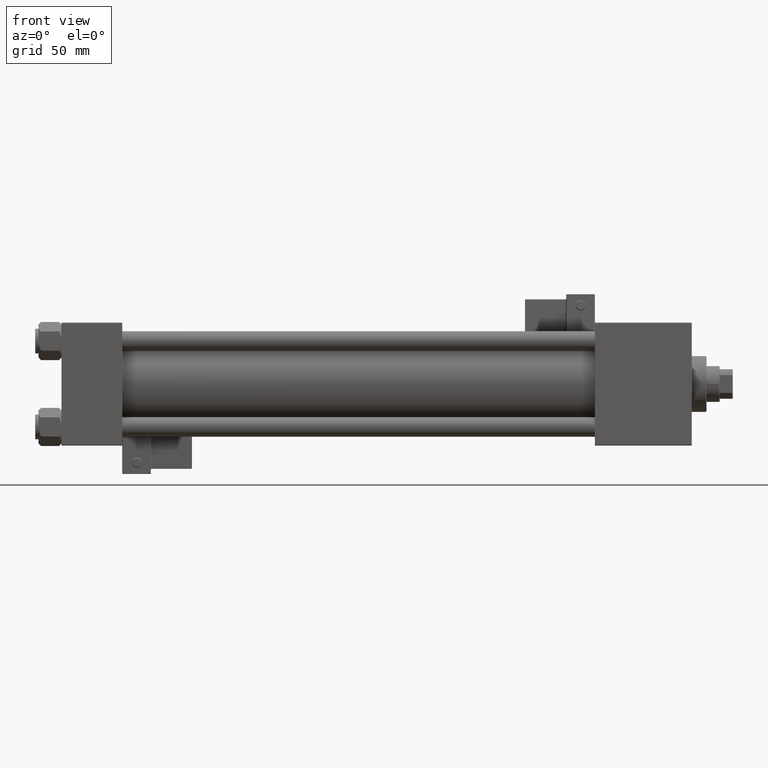
[diagram: clean part render]
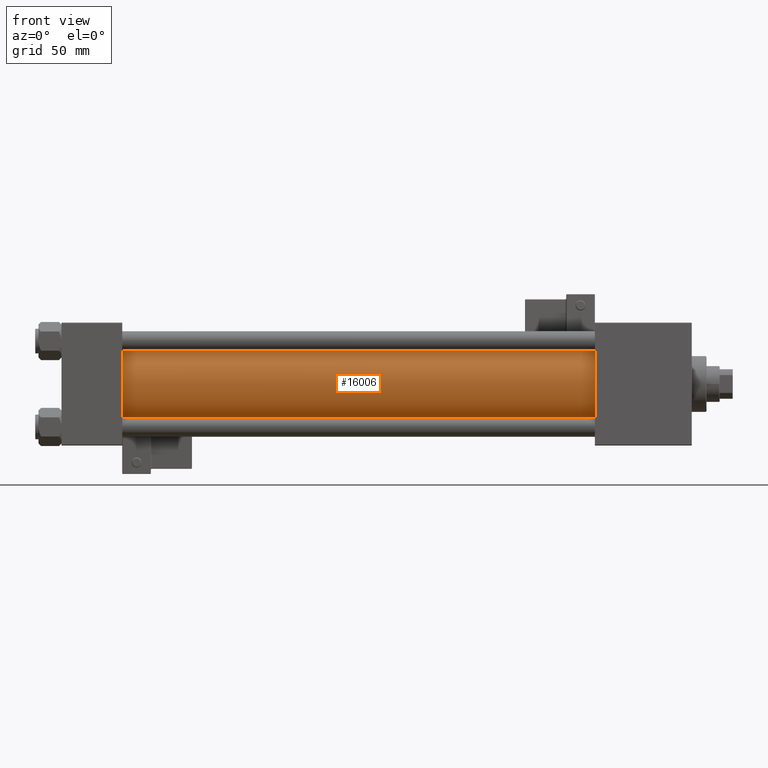
[diagram: same view with one face highlighted and labeled with its STEP entity id]
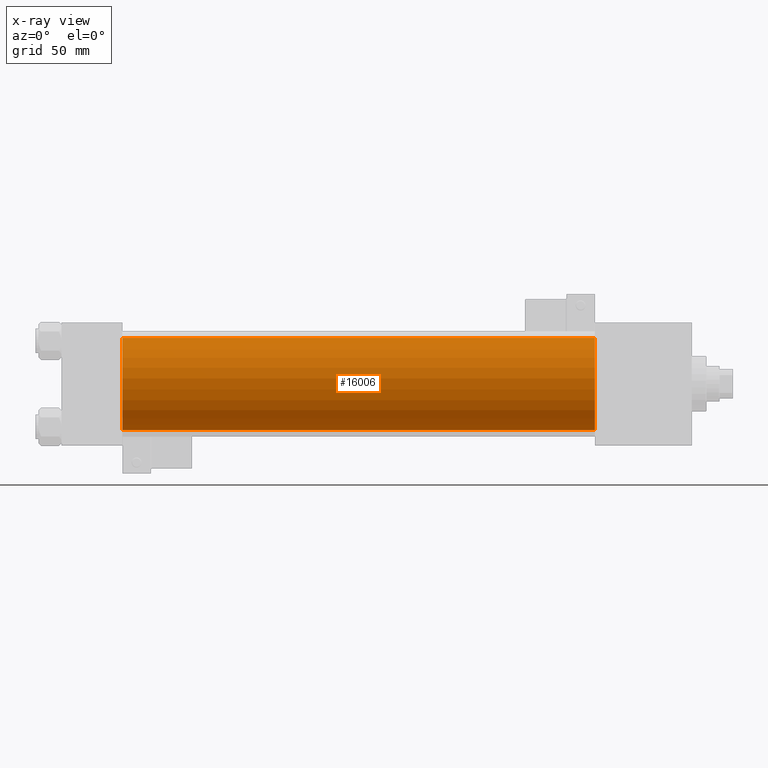
[diagram: x-ray of the same camera — body ghosted, the highlighted face saturated]
A machine part, front view. The second image highlights one B-rep face of the part: STEP entity #16006.
The next image is the same camera in x-ray: the body ghosted, the highlighted face saturated — about 0% of this face is hidden behind the body in this view.
In plain terms, the highlighted cylindrical surface (partial cylindrical patch) has radius 28 mm, axis along (-1, -0, -0).
Its self-contained STEP definition (entity closure, byte-faithful):
#1599 = AXIS2_PLACEMENT_3D ( 'NONE', #3724, #20176, #35868 ) ;
#2288 = CARTESIAN_POINT ( 'NONE',  ( 324.9999999999999432, -2.602085213965210642E-15, 28.00000000000000000 ) ) ;
#2361 = DIRECTION ( 'NONE',  ( -1.000000000000000000, -0.000000000000000000, -0.000000000000000000 ) ) ;
#3724 = CARTESIAN_POINT ( 'NONE',  ( 36.99999999999997868, -2.602085213965210642E-15, 0.000000000000000000 ) ) ;
#6062 = VERTEX_POINT ( 'NONE', #17835 ) ;
#6453 = CARTESIAN_POINT ( 'NONE',  ( 36.99999999999997868, 8.269258236473784371E-16, -28.00000000000000000 ) ) ;
#6457 = CARTESIAN_POINT ( 'NONE',  ( 324.9999999999999432, -2.602085213965210642E-15, 28.00000000000000000 ) ) ;
#10272 = AXIS2_PLACEMENT_3D ( 'NONE', #27030, #29959, #37935 ) ;
#10344 = LINE ( 'NONE', #22018, #18683 ) ;
#11960 = EDGE_CURVE ( 'NONE', #40812, #45245, #35236, .T. ) ;
#16006 = ADVANCED_FACE ( 'NONE', ( #17740 ), #31015, .T. ) ;
#17740 = FACE_OUTER_BOUND ( 'NONE', #41916, .T. ) ;
#17835 = CARTESIAN_POINT ( 'NONE',  ( 324.9999999999999432, 8.269258236473784371E-16, -28.00000000000000000 ) ) ;
#18683 = VECTOR ( 'NONE', #2361, 1000.000000000000000 ) ;
#18899 = AXIS2_PLACEMENT_3D ( 'NONE', #22415, #34370, #50578 ) ;
#20176 = DIRECTION ( 'NONE',  ( 1.000000000000000000, -0.000000000000000000, 0.000000000000000000 ) ) ;
#21409 = VERTEX_POINT ( 'NONE', #6453 ) ;
#22018 = CARTESIAN_POINT ( 'NONE',  ( 324.9999999999999432, 8.269258236473784371E-16, -28.00000000000000000 ) ) ;
#22415 = CARTESIAN_POINT ( 'NONE',  ( 324.9999999999999432, -2.602085213965210642E-15, 0.000000000000000000 ) ) ;
#27030 = CARTESIAN_POINT ( 'NONE',  ( 324.9999999999999432, -2.602085213965210642E-15, 0.000000000000000000 ) ) ;
#27064 = CIRCLE ( 'NONE', #1599, 28.00000000000000000 ) ;
#29634 = VECTOR ( 'NONE', #38694, 1000.000000000000000 ) ;
#29959 = DIRECTION ( 'NONE',  ( -1.000000000000000000, -0.000000000000000000, -0.000000000000000000 ) ) ;
#30777 = CIRCLE ( 'NONE', #18899, 28.00000000000000000 ) ;
#31015 = CYLINDRICAL_SURFACE ( 'NONE', #10272, 28.00000000000000000 ) ;
#33249 = CARTESIAN_POINT ( 'NONE',  ( 36.99999999999997868, -2.602085213965210642E-15, 28.00000000000000000 ) ) ;
#34370 = DIRECTION ( 'NONE',  ( 1.000000000000000000, 0.000000000000000000, 0.000000000000000000 ) ) ;
#35236 = LINE ( 'NONE', #2288, #29634 ) ;
#35646 = ORIENTED_EDGE ( 'NONE', *, *, #52419, .F. ) ;
#35868 = DIRECTION ( 'NONE',  ( 0.000000000000000000, 0.000000000000000000, 1.000000000000000000 ) ) ;
#37935 = DIRECTION ( 'NONE',  ( 0.000000000000000000, 0.000000000000000000, 1.000000000000000000 ) ) ;
#38694 = DIRECTION ( 'NONE',  ( -1.000000000000000000, -0.000000000000000000, -0.000000000000000000 ) ) ;
#39146 = EDGE_CURVE ( 'NONE', #45245, #21409, #27064, .T. ) ;
#39748 = ORIENTED_EDGE ( 'NONE', *, *, #39146, .T. ) ;
#40812 = VERTEX_POINT ( 'NONE', #6457 ) ;
#41916 = EDGE_LOOP ( 'NONE', ( #49943, #35646, #44469, #39748 ) ) ;
#42736 = EDGE_CURVE ( 'NONE', #6062, #21409, #10344, .T. ) ;
#44469 = ORIENTED_EDGE ( 'NONE', *, *, #11960, .T. ) ;
#45245 = VERTEX_POINT ( 'NONE', #33249 ) ;
#49943 = ORIENTED_EDGE ( 'NONE', *, *, #42736, .F. ) ;
#50578 = DIRECTION ( 'NONE',  ( 0.000000000000000000, 0.000000000000000000, -1.000000000000000000 ) ) ;
#52419 = EDGE_CURVE ( 'NONE', #40812, #6062, #30777, .T. ) ;